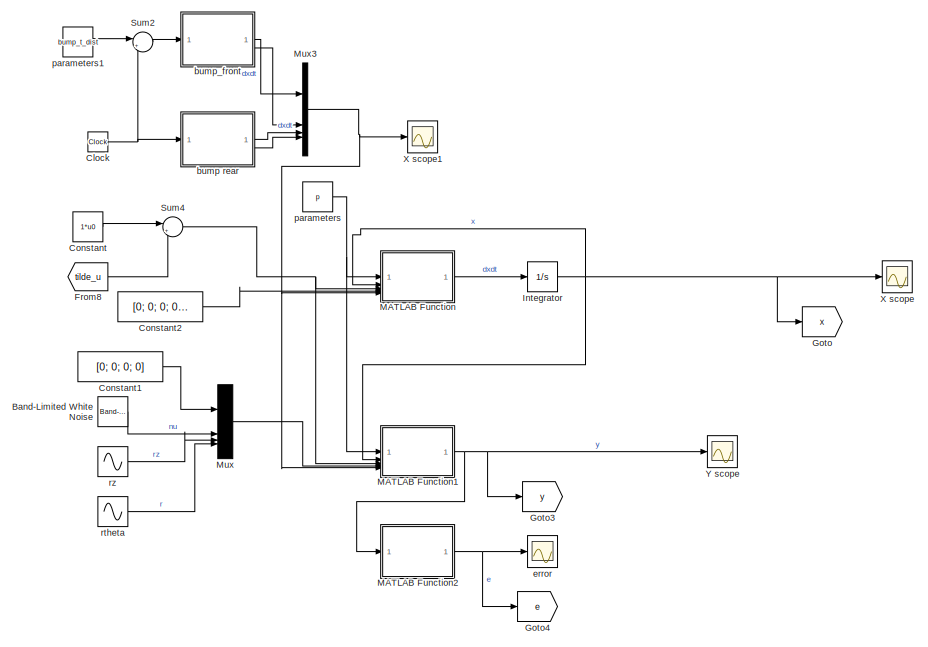
[diagram: root canvas - part 1/4, top left region]
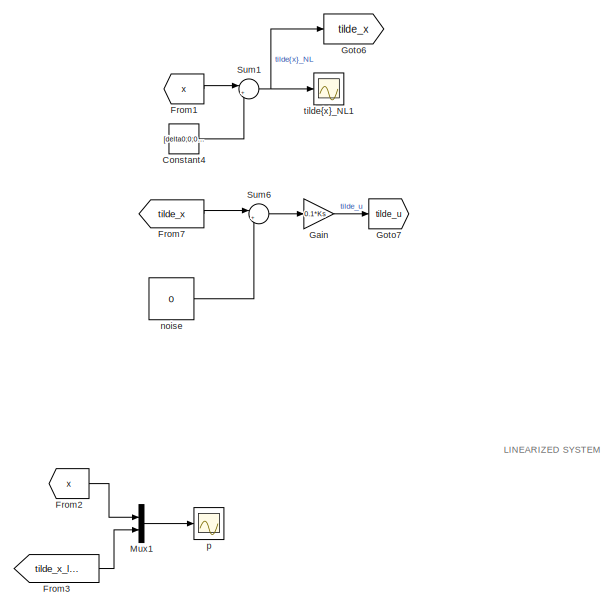
[diagram: root canvas - part 2/4, top center region]
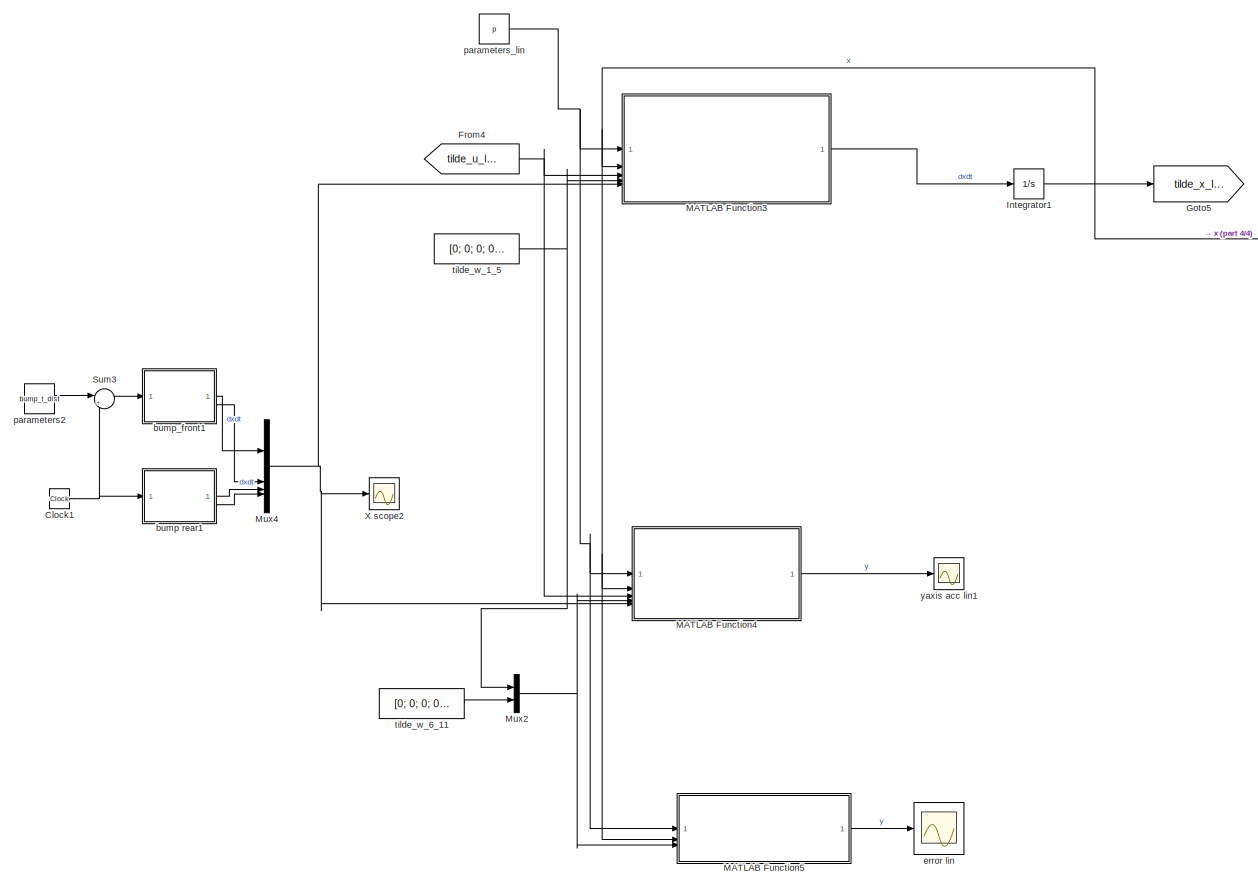
[diagram: root canvas - part 3/4, bottom center region]
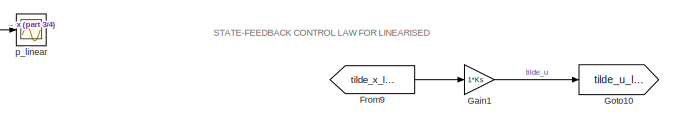
[diagram: root canvas - part 4/4, middle right region]
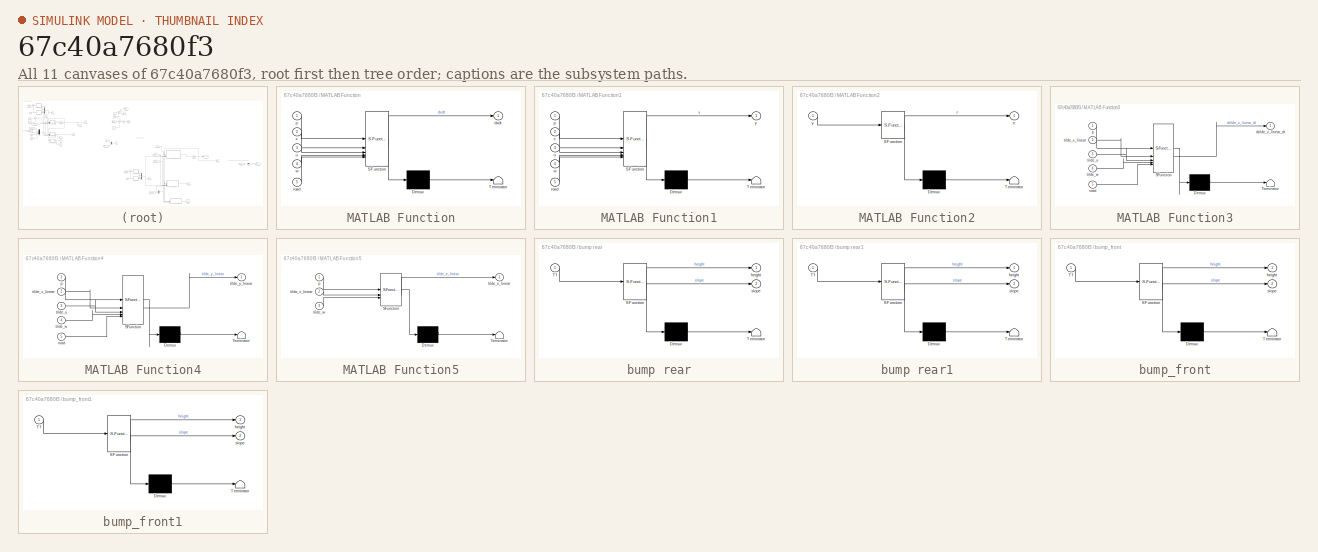
[diagram: thumbnail index - all 11 canvases of the model, root first then tree order]
MODEL slx_67c40a7680f3
KIND model
CONFIG AbsTol = auto
CONFIG EnableMultiTasking = off
CONFIG FixedStep = auto
CONFIG MaxStep = auto
CONFIG MinStep = auto
CONFIG RelTol = 1e-3
CONFIG SampleTimeConstraint = Unconstrained
CONFIG SolverName = VariableStepAuto
CONFIG StartTime = 0.0
CONFIG StopTime = 10.0
BLOCK [Scope]  error lin
  ActiveDisplayYMaximum = 1
  ActiveDisplayYMinimum = -1
  DataLoggingVariableName = ScopeData5
  Floating = off
  GraphicalSettings = {"GraphicalSettings":{"LegacySettings":true,"Style":{"Style":{"AxesColor":"[0 0 0]","ChannelNames":["height error","pitch error"],"ColorOrder":"[1 1 0.0666666666666667;0.0745098039215686 0.623529411764706 1;1 0.411764705882353 0.16078431372549;0.392156862745098 0.831372549019608 0.0745098039215686;0.717647058823529 0.274509803921569 1;0.0588235294117647 1 1;1 0.0745098039215686 0.650980392156863]"...<+481ch>
  MultipleDisplayCache = [{"MaxYLimMag":1,"MaxYLimReal":1,"MinYLimMag":0,"MinYLimReal":-1,"PlotAsMagnitudePhase":false,"ShowGrid":true,"ShowLegend":true,"Title":"%<SignalLabel>","YLabel":""}]
  NumInputPorts = 1
  ShowLegend = on
  WasSavedAsWebScope = on
BLOCK [Reference] Band-Limited White Noise  REF=simulink/Sources/Band-Limited
White Noise
  SourceBlock = simulink/Sources/Band-Limited\nWhite Noise
  SourceType = Band-Limited White Noise.
BLOCK [Clock] Clock
BLOCK [Clock] Clock1
BLOCK [Constant] Constant
  Value = 1*u0
BLOCK [Constant] Constant1
  Value = [0; 0; 0; 0]
BLOCK [Constant] Constant2
  Value = [0; 0; 0; 0;0]
BLOCK [Constant] Constant4
  Value = [delta0;0;0;delta0;0;delta0;0;0]
BLOCK [From] From1
  GotoTag = x
BLOCK [From] From2
  GotoTag = x
BLOCK [From] From3
  GotoTag = tilde_x_linear
BLOCK [From] From4
  GotoTag = tilde_u_linear
BLOCK [From] From7
  GotoTag = tilde_x
BLOCK [From] From8
  GotoTag = tilde_u
BLOCK [From] From9
  GotoTag = tilde_x_linear
BLOCK [Gain] Gain
  Gain = 0.1*Ks
  Multiplication = Matrix(K*u)
BLOCK [Gain] Gain1
  Gain = 1*Ks
  Multiplication = Matrix(K*u)
BLOCK [Goto] Goto
  GotoTag = x
BLOCK [Goto] Goto10
  GotoTag = tilde_u_linear
BLOCK [Goto] Goto3
  GotoTag = y
BLOCK [Goto] Goto4
  GotoTag = e
BLOCK [Goto] Goto5
  GotoTag = tilde_x_linear
BLOCK [Goto] Goto6
  GotoTag = tilde_x
BLOCK [Goto] Goto7
  GotoTag = tilde_u
BLOCK [Integrator] Integrator
  InitialCondition = x0
BLOCK [Integrator] Integrator1
  InitialCondition = x0_lin
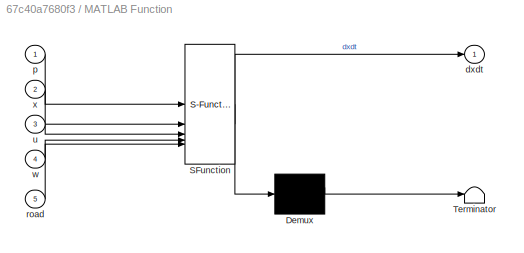
BLOCK [SubSystem] MATLAB Function
  ErrorFcn = Stateflow.Translate.translate
  PermitHierarchicalResolution = ExplicitOnly
  SFBlockType = MATLAB Function
  TreatAsAtomicUnit = on
BLOCK [Demux] MATLAB Function/ Demux 
  Outputs = 1
BLOCK [S-Function] MATLAB Function/ SFunction 
  EnableBusSupport = off
  FunctionName = sf_sfun
  PortCounts = [5 2]
  SFcnIsStateOwnerBlock = off
  SFunctionDeploymentMode = off
  Tag = Stateflow S-Function 2
BLOCK [Terminator] MATLAB Function/ Terminator 
BLOCK [Outport] MATLAB Function/dxdt
BLOCK [Inport] MATLAB Function/p
BLOCK [Inport] MATLAB Function/road
  Port = 5
BLOCK [Inport] MATLAB Function/u
  Port = 3
BLOCK [Inport] MATLAB Function/w
  Port = 4
BLOCK [Inport] MATLAB Function/x
  Port = 2
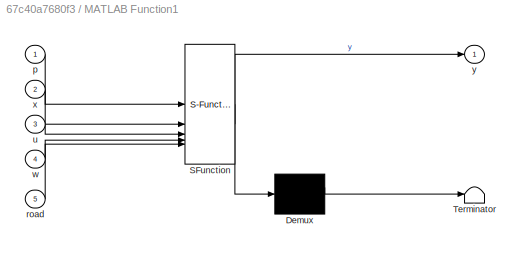
BLOCK [SubSystem] MATLAB Function1
  ErrorFcn = Stateflow.Translate.translate
  PermitHierarchicalResolution = ExplicitOnly
  SFBlockType = MATLAB Function
  TreatAsAtomicUnit = on
BLOCK [Demux] MATLAB Function1/ Demux 
  Outputs = 1
BLOCK [S-Function] MATLAB Function1/ SFunction 
  EnableBusSupport = off
  FunctionName = sf_sfun
  PortCounts = [5 2]
  SFcnIsStateOwnerBlock = off
  SFunctionDeploymentMode = off
  Tag = Stateflow S-Function 1
BLOCK [Terminator] MATLAB Function1/ Terminator 
BLOCK [Inport] MATLAB Function1/p
BLOCK [Inport] MATLAB Function1/road
  Port = 5
BLOCK [Inport] MATLAB Function1/u
  Port = 3
BLOCK [Inport] MATLAB Function1/w
  Port = 4
BLOCK [Inport] MATLAB Function1/x
  Port = 2
BLOCK [Outport] MATLAB Function1/y
BLOCK [SubSystem] MATLAB Function2
  ErrorFcn = Stateflow.Translate.translate
  PermitHierarchicalResolution = ExplicitOnly
  SFBlockType = MATLAB Function
  TreatAsAtomicUnit = on
BLOCK [Demux] MATLAB Function2/ Demux 
  Outputs = 1
BLOCK [S-Function] MATLAB Function2/ SFunction 
  EnableBusSupport = off
  FunctionName = sf_sfun
  PortCounts = [1 2]
  SFcnIsStateOwnerBlock = off
  SFunctionDeploymentMode = off
  Tag = Stateflow S-Function 3
BLOCK [Terminator] MATLAB Function2/ Terminator 
BLOCK [Outport] MATLAB Function2/e
BLOCK [Inport] MATLAB Function2/y
BLOCK [SubSystem] MATLAB Function3
  ErrorFcn = Stateflow.Translate.translate
  PermitHierarchicalResolution = ExplicitOnly
  SFBlockType = MATLAB Function
  TreatAsAtomicUnit = on
BLOCK [Demux] MATLAB Function3/ Demux 
  Outputs = 1
BLOCK [S-Function] MATLAB Function3/ SFunction 
  EnableBusSupport = off
  FunctionName = sf_sfun
  PortCounts = [5 2]
  SFcnIsStateOwnerBlock = off
  SFunctionDeploymentMode = off
  Tag = Stateflow S-Function 4
BLOCK [Terminator] MATLAB Function3/ Terminator 
BLOCK [Outport] MATLAB Function3/dtilde_x_linear_dt
BLOCK [Inport] MATLAB Function3/p
BLOCK [Inport] MATLAB Function3/road
  Port = 5
BLOCK [Inport] MATLAB Function3/tilde_u
  Port = 3
BLOCK [Inport] MATLAB Function3/tilde_w
  Port = 4
BLOCK [Inport] MATLAB Function3/tilde_x_linear
  Port = 2
BLOCK [SubSystem] MATLAB Function4
  ErrorFcn = Stateflow.Translate.translate
  PermitHierarchicalResolution = ExplicitOnly
  SFBlockType = MATLAB Function
  TreatAsAtomicUnit = on
BLOCK [Demux] MATLAB Function4/ Demux 
  Outputs = 1
BLOCK [S-Function] MATLAB Function4/ SFunction 
  EnableBusSupport = off
  FunctionName = sf_sfun
  PortCounts = [5 2]
  SFcnIsStateOwnerBlock = off
  SFunctionDeploymentMode = off
  Tag = Stateflow S-Function 5
BLOCK [Terminator] MATLAB Function4/ Terminator 
BLOCK [Inport] MATLAB Function4/p
BLOCK [Inport] MATLAB Function4/road
  Port = 5
BLOCK [Inport] MATLAB Function4/tilde_u
  Port = 3
BLOCK [Inport] MATLAB Function4/tilde_w
  Port = 4
BLOCK [Inport] MATLAB Function4/tilde_x_linear
  Port = 2
BLOCK [Outport] MATLAB Function4/tilde_y_linear
BLOCK [SubSystem] MATLAB Function5
  ErrorFcn = Stateflow.Translate.translate
  PermitHierarchicalResolution = ExplicitOnly
  SFBlockType = MATLAB Function
  TreatAsAtomicUnit = on
BLOCK [Demux] MATLAB Function5/ Demux 
  Outputs = 1
BLOCK [S-Function] MATLAB Function5/ SFunction 
  EnableBusSupport = off
  FunctionName = sf_sfun
  PortCounts = [3 2]
  SFcnIsStateOwnerBlock = off
  SFunctionDeploymentMode = off
  Tag = Stateflow S-Function 6
BLOCK [Terminator] MATLAB Function5/ Terminator 
BLOCK [Inport] MATLAB Function5/p
BLOCK [Outport] MATLAB Function5/tilde_e_linear
BLOCK [Inport] MATLAB Function5/tilde_w
  Port = 3
BLOCK [Inport] MATLAB Function5/tilde_x_linear
  Port = 2
BLOCK [Mux] Mux
  DisplayOption = bar
BLOCK [Mux] Mux1
  DisplayOption = bar
  Inputs = 2
BLOCK [Mux] Mux2
  DisplayOption = bar
  Inputs = 2
BLOCK [Mux] Mux3
  DisplayOption = bar
BLOCK [Mux] Mux4
  DisplayOption = bar
BLOCK [Sum] Sum1
  Inputs = |+-
BLOCK [Sum] Sum2
  Inputs = |++
BLOCK [Sum] Sum3
  Inputs = |++
BLOCK [Sum] Sum4
  Inputs = |++
BLOCK [Sum] Sum6
  Inputs = |++
BLOCK [Scope] X scope
  ActiveDisplayYMaximum = 2.5364123096854247
  ActiveDisplayYMinimum = -2.9269551656829207
  ContainerLayout = {"WindowBounds":[1,1457,1534,671]}
  DataLoggingVariableName = ScopeData2
  Floating = off
  GraphicalSettings = {"Style":{"BackgroundColor":[0.12941176470588237,0.12941176470588237,0.12941176470588237],"AxesColor":[0.07058823529411765,0.07058823529411765,0.07058823529411765],"LabelsColor":[0.8509803921568627,0.8509803921568627,0.8509803921568627],"PreserveColors":false,"Visible":[true,false,true,true,true,false,false,false],"LineStyle":["-","-","-","-","-","-","-","-"],"LineWidth":[1.5,1.5,1.5,1.5,1.5,1.5,1...<+3447ch>
  MultipleDisplayCache = [{"MaxYLimMag":15.769807976481649,"MaxYLimReal":2.5364123096854247,"MinYLimMag":0,"MinYLimReal":-2.9269551656829207,"PlotAsMagnitudePhase":false,"ShowGrid":true,"ShowLegend":true,"Title":"%<SignalLabel>","YLabel":""}]
  NumInputPorts = 1
  ShowLegend = on
  Visible = on
  WasSavedAsWebScope = on
BLOCK [Scope] X scope1
  ActiveDisplayYMaximum = 0.56028225974469714
  ActiveDisplayYMinimum = -0.062253584416077451
  ContainerLayout = {"WindowBounds":[1,1459,1532,669],"gridDimensions":{"w":1,"h":1},"tileCount":1,"tileCoverage":1,"columnWeights":1,"rowWeights":1,"tileOccupancy":{"children":[{"id":"/X scope1"},{"id":"/X scope"},{"id":"/Y scope"}]}}
  DataLoggingVariableName = ScopeData1
  Floating = off
  GraphicalSettings = {"Style":{"BackgroundColor":[0.12941176470588237,0.12941176470588237,0.12941176470588237],"AxesColor":[0.07058823529411765,0.07058823529411765,0.07058823529411765],"LabelsColor":[0.8509803921568627,0.8509803921568627,0.8509803921568627],"PreserveColors":false,"Visible":[true,false,true,false],"LineStyle":["-","-","-","-"],"LineWidth":[1.5,1.5,1.5,1.5],"BarWidth":[0.9,0.9,0.9,0.9],"LineColor":["aut...<+2417ch>
  MultipleDisplayCache = [{"MaxYLimMag":0.56028225974469714,"MaxYLimReal":0.56028225974469714,"MinYLimMag":0,"MinYLimReal":-0.062253584416077451,"PlotAsMagnitudePhase":false,"ShowGrid":true,"ShowLegend":true,"Title":"%<SignalLabel>","YLabel":""}]
  NumInputPorts = 1
  ShowLegend = on
  Visible = on
  WasSavedAsWebScope = on
BLOCK [Scope] X scope2
  ActiveDisplayYMaximum = 1.9213273662141332
  ActiveDisplayYMinimum = -2.6804502153599614
  ContainerLayout = {"WindowBounds":[1,1457,1534,671]}
  DataLoggingVariableName = ScopeData9
  Floating = off
  GraphicalSettings = {"AxesScalingProperties":{"AlignXAxis":"Center","AlignYAxis":"Center","AutoScaleXAxisLimits":false,"AxesScaling":"Manual","AxesScalingNumUpdates":10,"ExpandOnly":true,"ScaleAxesLimitsAtStop":false,"XAxisDataRange":100,"YAxisDataRange":80},"DisplayProperties":{"ColorOrder":["auto","auto","auto","auto","auto","auto","auto","auto","auto","auto","auto","auto","auto","auto","auto","auto","auto","auto",...<+2437ch>
  MultipleDisplayCache = [{"MaxYLimMag":0.56028225974469714,"MaxYLimReal":1.9213273662141332,"MinYLimMag":0,"MinYLimReal":-2.6804502153599614,"PlotAsMagnitudePhase":false,"ShowGrid":true,"ShowLegend":true,"Title":"%<SignalLabel>","YLabel":""}]
  NumInputPorts = 1
  ShowLegend = on
  Visible = on
  WasSavedAsWebScope = on
BLOCK [Scope] Y scope
  ActiveDisplayYMaximum = 4.3230780985024841
  ActiveDisplayYMinimum = -4.5656742824498968
  ContainerLayout = {"WindowBounds":[1,1459,1532,669],"gridDimensions":{"w":1,"h":1},"tileCount":1,"tileCoverage":1,"columnWeights":1,"rowWeights":1,"tileOccupancy":{"children":[{"id":"/X scope1"},{"id":"/X scope"},{"id":"/Y scope"}]}}
  DataLoggingVariableName = ScopeData3
  Floating = off
  GraphicalSettings = {"Style":{"BackgroundColor":[0.12941176470588237,0.12941176470588237,0.12941176470588237],"AxesColor":[0.07058823529411765,0.07058823529411765,0.07058823529411765],"LabelsColor":[0.8509803921568627,0.8509803921568627,0.8509803921568627],"PreserveColors":false,"Visible":[false,false,false,false,false,false,false],"LineStyle":["-","-","-","-","-","-","-"],"LineWidth":[1.5,1.5,1.5,1.5,1.5,1.5,1.5],"B...<+2687ch>
  MultipleDisplayCache = [{"MaxYLimMag":4.79261,"MaxYLimReal":4.3230780985024841,"MinYLimMag":0,"MinYLimReal":-4.5656742824498968,"PlotAsMagnitudePhase":false,"ShowGrid":true,"ShowLegend":true,"Title":"%<SignalLabel>","YLabel":""}]
  NumInputPorts = 1
  ShowLegend = on
  Visible = on
  WasSavedAsWebScope = on
BLOCK [SubSystem] bump rear
  ErrorFcn = Stateflow.Translate.translate
  PermitHierarchicalResolution = ExplicitOnly
  SFBlockType = MATLAB Function
  TreatAsAtomicUnit = on
BLOCK [Demux] bump rear/ Demux 
  Outputs = 1
BLOCK [S-Function] bump rear/ SFunction 
  EnableBusSupport = off
  FunctionName = sf_sfun
  PortCounts = [1 3]
  SFcnIsStateOwnerBlock = off
  SFunctionDeploymentMode = off
  Tag = Stateflow S-Function 7
BLOCK [Terminator] bump rear/ Terminator 
BLOCK [Inport] bump rear/Tf
BLOCK [Outport] bump rear/height
BLOCK [Outport] bump rear/slope
  Port = 2
BLOCK [SubSystem] bump rear1
  ErrorFcn = Stateflow.Translate.translate
  PermitHierarchicalResolution = ExplicitOnly
  SFBlockType = MATLAB Function
  TreatAsAtomicUnit = on
BLOCK [Demux] bump rear1/ Demux 
  Outputs = 1
BLOCK [S-Function] bump rear1/ SFunction 
  EnableBusSupport = off
  FunctionName = sf_sfun
  PortCounts = [1 3]
  SFcnIsStateOwnerBlock = off
  SFunctionDeploymentMode = off
  Tag = Stateflow S-Function 9
BLOCK [Terminator] bump rear1/ Terminator 
BLOCK [Inport] bump rear1/Tf
BLOCK [Outport] bump rear1/height
BLOCK [Outport] bump rear1/slope
  Port = 2
BLOCK [SubSystem] bump_front
  ErrorFcn = Stateflow.Translate.translate
  PermitHierarchicalResolution = ExplicitOnly
  SFBlockType = MATLAB Function
  TreatAsAtomicUnit = on
BLOCK [Demux] bump_front/ Demux 
  Outputs = 1
BLOCK [S-Function] bump_front/ SFunction 
  EnableBusSupport = off
  FunctionName = sf_sfun
  PortCounts = [1 3]
  SFcnIsStateOwnerBlock = off
  SFunctionDeploymentMode = off
  Tag = Stateflow S-Function 8
BLOCK [Terminator] bump_front/ Terminator 
BLOCK [Inport] bump_front/Tf
BLOCK [Outport] bump_front/height
BLOCK [Outport] bump_front/slope
  Port = 2
BLOCK [SubSystem] bump_front1
  ErrorFcn = Stateflow.Translate.translate
  PermitHierarchicalResolution = ExplicitOnly
  SFBlockType = MATLAB Function
  TreatAsAtomicUnit = on
BLOCK [Demux] bump_front1/ Demux 
  Outputs = 1
BLOCK [S-Function] bump_front1/ SFunction 
  EnableBusSupport = off
  FunctionName = sf_sfun
  PortCounts = [1 3]
  SFcnIsStateOwnerBlock = off
  SFunctionDeploymentMode = off
  Tag = Stateflow S-Function 10
BLOCK [Terminator] bump_front1/ Terminator 
BLOCK [Inport] bump_front1/Tf
BLOCK [Outport] bump_front1/height
BLOCK [Outport] bump_front1/slope
  Port = 2
BLOCK [Scope] error 
  ActiveDisplayYMaximum = 0.76934
  ActiveDisplayYMinimum = -0.92138
  DataLoggingVariableName = ScopeData6
  Floating = off
  GraphicalSettings = {"GraphicalSettings":{"LegacySettings":true,"Style":{"Style":{"AxesColor":"[0 0 0]","ChannelNames":[""],"ColorOrder":"[1 1 0.0666666666666667;0.0745098039215686 0.623529411764706 1;1 0.411764705882353 0.16078431372549;0.392156862745098 0.831372549019608 0.0745098039215686;0.717647058823529 0.274509803921569 1;0.0588235294117647 1 1;1 0.0745098039215686 0.650980392156863]","CurrentConfiguration":"e...<+426ch>
  MultipleDisplayCache = [{"MaxYLimMag":0.92138,"MaxYLimReal":0.76934,"MinYLimMag":0,"MinYLimReal":-0.92138,"PlotAsMagnitudePhase":false,"ShowGrid":true,"ShowLegend":true,"Title":"%<SignalLabel>","YLabel":""}]
  NumInputPorts = 1
  ShowLegend = on
  WasSavedAsWebScope = on
BLOCK [Constant] noise
  Value = 0
BLOCK [Scope] p
  ActiveDisplayYMaximum = 2.06603
  ActiveDisplayYMinimum = -2.11909
  Floating = off
  GraphicalSettings = {"GraphicalSettings":{"LegacySettings":true,"Style":{"Cursors":{"CursorChannels":"[1 1]","Enabled":"true","Horizontal":"false","LinkToWaveform":"true","LockSpacing":"false","SnapToData":"false","XLocation":"[3.1543624161074 30.0000000000001]","YLocation":"[NaN NaN]"},"Style":{"AxesColor":"[0 0 0]","ChannelNames":["Pos Z","vel Z","pos Theta","vel theta","theta road","Z road"],"ColorOrder":"[1 1 0.0...<+1121ch>
  MultipleDisplayCache = [{"MaxYLimMag":2.11909,"MaxYLimReal":2.06603,"MinYLimMag":0,"MinYLimReal":-2.11909,"PlotAsMagnitudePhase":false,"ShowGrid":true,"ShowLegend":true,"Title":"%<SignalLabel>","YLabel":""}]
  NumInputPorts = 1
  ShowLegend = on
  WasSavedAsWebScope = on
BLOCK [Scope] p_linear
  ActiveDisplayYMaximum = 0.95967
  ActiveDisplayYMinimum = -1.85296
  DataLoggingVariableName = ScopeData7
  Floating = off
  GraphicalSettings = {"GraphicalSettings":{"LegacySettings":true,"Style":{"AxesScalingProperties":{"ScaleAxesLimitsAtStop":false},"Style":{"AxesColor":"[0 0 0]","ChannelNames":["pos_z","vel_z","pos_theta","vel_theta","theta_road","z_road"],"ColorOrder":"[1 1 0.0666666666666667;0.0745098039215686 0.623529411764706 1;1 0.411764705882353 0.16078431372549;0.392156862745098 0.831372549019608 0.0745098039215686;0.7176470588...<+812ch>
  MultipleDisplayCache = [{"MaxYLimMag":1.85296,"MaxYLimReal":0.95967,"MinYLimMag":0,"MinYLimReal":-1.85296,"PlotAsMagnitudePhase":false,"ShowGrid":true,"ShowLegend":true,"Title":"%<SignalLabel>","YLabel":""}]
  NumInputPorts = 1
  ShowLegend = on
  WasSavedAsWebScope = on
BLOCK [Constant] parameters
  Value = p
BLOCK [Constant] parameters1
  Value = bump_t_dist
BLOCK [Constant] parameters2
  Value = bump_t_dist
BLOCK [Constant] parameters_lin
  Value = p
BLOCK [Sin] rtheta
  Amplitude = 0
  Bias = r0
  Frequency = 0
  SampleTime = 0
BLOCK [Sin] rz
  Amplitude = 0
  Bias = r0
  Frequency = 0
  SampleTime = 0
BLOCK [Constant] tilde_w_1_5
  Value = [0; 0; 0; 0; 0]
BLOCK [Constant] tilde_w_6_11
  Value = [0; 0; 0; 0; 0; 0]
BLOCK [Scope] tilde{x}_NL1
  ActiveDisplayYMaximum = 2.55492
  ActiveDisplayYMinimum = -4.93552
  DataLoggingVariableName = ScopeData4
  Floating = off
  GraphicalSettings = {"GraphicalSettings":{"LegacySettings":true,"Style":{"AxesScalingProperties":{"ScaleAxesLimitsAtStop":false},"Style":{"AxesColor":"[0 0 0]","ChannelNames":["position","velocity","pos theta","vel theta","theta road","z road"],"ColorOrder":"[1 1 0.0666666666666667;0.0745098039215686 0.623529411764706 1;1 0.411764705882353 0.16078431372549;0.392156862745098 0.831372549019608 0.0745098039215686;0.7176...<+667ch>
  MultipleDisplayCache = [{"MaxYLimMag":4.93552,"MaxYLimReal":2.55492,"MinYLimMag":0,"MinYLimReal":-4.93552,"PlotAsMagnitudePhase":false,"ShowGrid":true,"ShowLegend":true,"Title":"%<SignalLabel>","YLabel":""}]
  NumInputPorts = 1
  ShowLegend = on
  WasSavedAsWebScope = on
BLOCK [Scope] yaxis acc lin1
  ActiveDisplayYMaximum = 1
  ActiveDisplayYMinimum = -1
  DataLoggingVariableName = ScopeData8
  Floating = off
  GraphicalSettings = {"GraphicalSettings":{"LegacySettings":true,"Style":{"Style":{"AxesColor":"[0 0 0]","ChannelNames":["y_axis_acc_lin","z_axis_acc_lin","gyro_lin","front_pot_lin","rear_pot_lin"],"ColorOrder":"[1 1 0.0666666666666667;0.0745098039215686 0.623529411764706 1;1 0.411764705882353 0.16078431372549;0.392156862745098 0.831372549019608 0.0745098039215686;0.717647058823529 0.274509803921569 1;0.05882352941176...<+605ch>
  MultipleDisplayCache = [{"MaxYLimMag":1,"MaxYLimReal":1,"MinYLimMag":0,"MinYLimReal":-1,"PlotAsMagnitudePhase":false,"ShowGrid":true,"ShowLegend":true,"Title":"%<SignalLabel>","YLabel":""}]
  NumInputPorts = 1
  ShowLegend = on
  WasSavedAsWebScope = on
ANNOTATION (root): LINEARIZED SYSTEM
ANNOTATION (root): STATE-FEEDBACK CONTROL LAW FOR LINEARISED
LINE Band-Limited White Noise:1 -> Mux:2
NET Clock1:1 -> Sum3:2, bump rear1:1
NET Clock:1 -> Sum2:2, bump rear:1
LINE Constant1:1 -> Mux:1
LINE Constant2:1 -> MATLAB Function:4
LINE Constant4:1 -> Sum1:2
LINE Constant:1 -> Sum4:1
LINE From1:1 -> Sum1:1
LINE From2:1 -> Mux1:1
LINE From3:1 -> Mux1:2
NET From4:1 -> MATLAB Function3:3, MATLAB Function4:3
LINE From7:1 -> Sum6:1
LINE From8:1 -> Sum4:2
LINE From9:1 -> Gain1:1
LINE Gain1:1 -> Goto10:1
LINE Gain:1 -> Goto7:1
NET Integrator1:1 -> Goto5:1, MATLAB Function3:2, MATLAB Function4:2, MATLAB Function5:2, p_linear:1
NET Integrator:1 -> Goto:1, MATLAB Function1:2, MATLAB Function:2, X scope:1
NET MATLAB Function1:1 -> Goto3:1, MATLAB Function2:1, Y scope:1
NET MATLAB Function2:1 -> Goto4:1, error :1
LINE MATLAB Function3:1 -> Integrator1:1
LINE MATLAB Function4:1 -> yaxis acc lin1:1
LINE MATLAB Function5:1 ->  error lin:1
LINE MATLAB Function:1 -> Integrator:1
LINE Mux1:1 -> p:1
NET Mux2:1 -> MATLAB Function4:4, MATLAB Function5:3
NET Mux3:1 -> MATLAB Function1:5, MATLAB Function:5, X scope1:1
NET Mux4:1 -> MATLAB Function3:5, MATLAB Function4:5, X scope2:1
LINE Mux:1 -> MATLAB Function1:4
NET Sum1:1 -> Goto6:1, tilde{x}_NL1:1
LINE Sum2:1 -> bump_front:1
LINE Sum3:1 -> bump_front1:1
NET Sum4:1 -> MATLAB Function1:3, MATLAB Function:3
LINE Sum6:1 -> Gain:1
LINE bump rear1:1 -> Mux4:3
LINE bump rear1:2 -> Mux4:4
LINE bump rear:1 -> Mux3:3
LINE bump rear:2 -> Mux3:4
LINE bump_front1:1 -> Mux4:1
LINE bump_front1:2 -> Mux4:2
LINE bump_front:1 -> Mux3:1
LINE bump_front:2 -> Mux3:2
LINE noise:1 -> Sum6:2
LINE parameters1:1 -> Sum2:1
LINE parameters2:1 -> Sum3:1
NET parameters:1 -> MATLAB Function1:1, MATLAB Function:1
NET parameters_lin:1 -> MATLAB Function3:1, MATLAB Function4:1, MATLAB Function5:1
LINE rtheta:1 -> Mux:4
LINE rz:1 -> Mux:3
NET tilde_w_1_5:1 -> MATLAB Function3:4, Mux2:1
LINE tilde_w_6_11:1 -> Mux2:2
note: NET lines group one-source signal fan-out (src -> all destinations, sorted); 1:1 wires keep LINE
CHART MATLAB Function1 states=1 transitions=1
  STATE_LABEL 'eML_blk_kernel()'
  STATE_LABEL 'SCRIPT:\nfunction y = h(p,x, u, w, road)\n\n%% parameters\nm = p(1);      % [kg] mass\nk = p(2);    % [N/m] spring stiffness\nbeta = p(3);   % [N/(m/s)] damper coeff.\nell0 = p(4);   % [m] 0-load lenght\ng = p(5);   % [m/s^2] gravity acceleration\ndf = p(6);     % [m] distance between center of mass and front\ndr = p(7);     % [m] distance between center of mass and rear\nJ = p(8);      % [kg*m^2] Moment of ...<+2667ch>'
CHART MATLAB Function states=1 transitions=1
  STATE_LABEL 'eML_blk_kernel()'
  STATE_LABEL 'SCRIPT:\nfunction dxdt = f(p,x,u,w,road)\n%% parameters\n%% parameters\nm = p(1);      % [kg] mass\nk = p(2);    % [N/m] spring stiffness\nbeta = p(3);   % [N/(m/s)] damper coeff.\nell0 = p(4);   % [m] 0-load lenght\ng = p(5);   % [m/s^2] gravity acceleration\ndf = p(6);     % [m] distance between center of mass and front\ndr = p(7);     % [m] distance between center of mass and rear\nJ = p(8);      % [kg*m^...<+2940ch>'
CHART MATLAB Function2 states=1 transitions=1
  STATE_LABEL 'eML_blk_kernel()'
  STATE_LABEL 'SCRIPT:\nfunction e = E(y)\n\ndf = 1;     % [m] distance between center of mass and front\ndr = 1;     % [m] distance between center of mass and rear\n\n\nyy = y(1); % output of h block yaxisacc \nyz = y(2); % output of h block zaxisacc \nyg = y(3); % output of h block gyro\nyf = y(4); % output of h block pot. front\nyr = y(5); % output of h block pot. rear\n \n%% ref\nrz = y(6);\nrtheta = y(7);\n\ne = [\n    (yf*d...<+67ch>'
CHART MATLAB Function3 states=1 transitions=1
  STATE_LABEL 'eML_blk_kernel()'
  STATE_LABEL 'SCRIPT:\nfunction dtilde_x_linear_dt = Linear(p,tilde_x_linear,tilde_u,tilde_w, road)\n\n\n\n%% parameters\n\n%% parameters\nm = p(1);      % [kg] mass\nk = p(2);    % [N/m] spring stiffness\nbeta = p(3);   % [N/(m/s)] damper coeff.\nell0 = p(4);   % [m] 0-load lenght\ng = p(5);   % [m/s^2] gravity acceleration\ndf = p(6);     % [m] distance between center of mass and front\ndr = p(7);     % [m] distance betwee...<+386ch>'
CHART MATLAB Function4 states=1 transitions=1
  STATE_LABEL 'eML_blk_kernel()'
  STATE_LABEL 'SCRIPT:\nfunction tilde_y_linear = Linear(p,tilde_x_linear,tilde_u,tilde_w, road)\n\n\n%% parameters\nm = p(1);      % [kg] mass\nk = p(2);    % [N/m] spring stiffness\nbeta = p(3);   % [N/(m/s)] damper coeff.\nell0 = p(4);   % [m] 0-load lenght\ng = p(5);   % [m/s^2] gravity acceleration\ndf = p(6);     % [m] distance between center of mass and front\ndr = p(7);     % [m] distance between center of mass and...<+523ch>'
CHART MATLAB Function5 states=1 transitions=1
  STATE_LABEL 'eML_blk_kernel()'
  STATE_LABEL 'SCRIPT:\nfunction tilde_e_linear = Linear(p,tilde_x_linear,tilde_w)\n\n\n%% parameters\nm = p(1);      % [kg] mass\nk = p(2);    % [N/m] spring stiffness\nbeta = p(3);   % [N/(m/s)] damper coeff.\nell0 = p(4);   % [m] 0-load lenght\ng = p(5);   % [m/s^2] gravity acceleration\ndf = p(6);     % [m] distance between center of mass and front\ndr = p(7);     % [m] distance between center of mass and rear\nJ = p(8)...<+251ch>'
CHART bump rear states=1 transitions=1
  STATE_LABEL 'eML_blk_kernel()'
  STATE_LABEL "SCRIPT:\nfunction [height, slope] = bump(Tf)\n    % Parametri\n    a = 0.1;       % Ampiezza del bump (m)\n    V = 20;         % Velocità del veicolo (m/s)\n    lambda = 5;     % Lunghezza dell'onda del bump (m)\n    Tspan = 5;      % Durata della simulazione (s)\n    T1 = 5;         % Tempo di inizio del bump\n    T2 = T1 + lambda/V; % Tempo di fine del bump\n\n    % Calcola l'altezza della strada in base ...<+344ch>"  <repeated x4 — deduplicated; at blocks: bump rear, bump_front, bump rear1, bump_front1>
CHART bump_front states=1 transitions=1
  STATE_LABEL 'eML_blk_kernel()'
CHART bump rear1 states=1 transitions=1
  STATE_LABEL 'eML_blk_kernel()'
CHART bump_front1 states=1 transitions=1
  STATE_LABEL 'eML_blk_kernel()'
CHART  states=0 transitions=0
CHART  states=0 transitions=0
CHART  states=0 transitions=0
CHART  states=0 transitions=0
CHART  states=0 transitions=0
CHART  states=0 transitions=0
CHART  states=0 transitions=0
CHART  states=0 transitions=0
CHART  states=0 transitions=0
CHART  states=0 transitions=0
